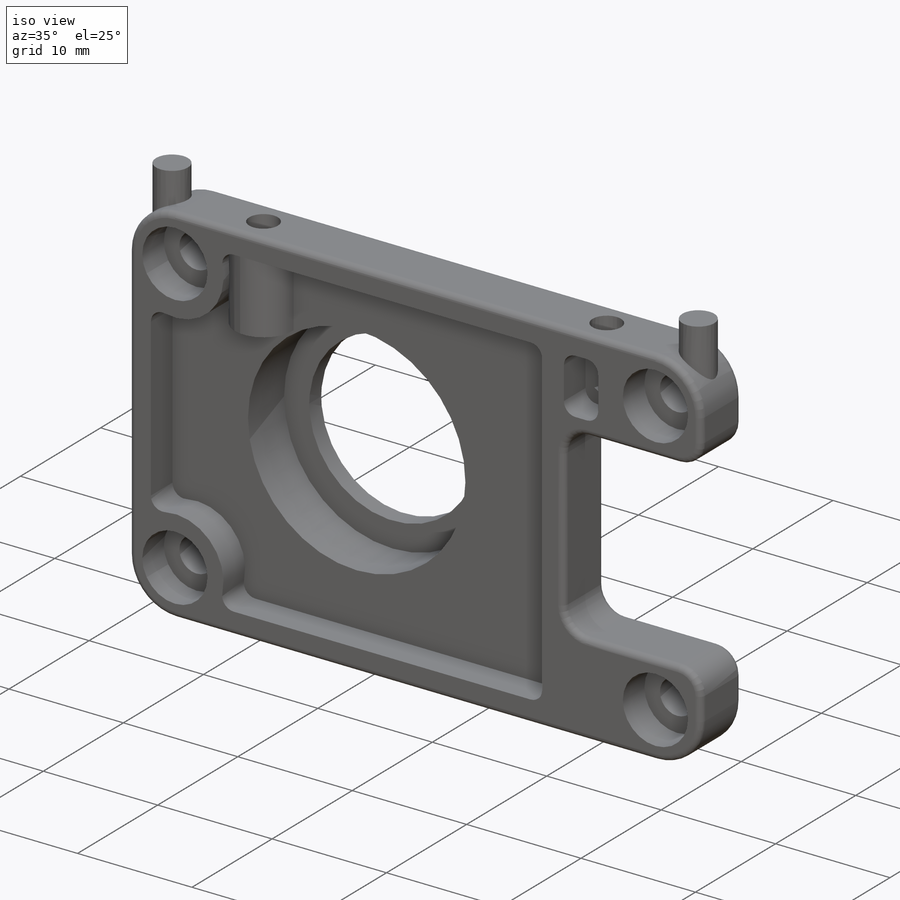
[diagram: iso view]
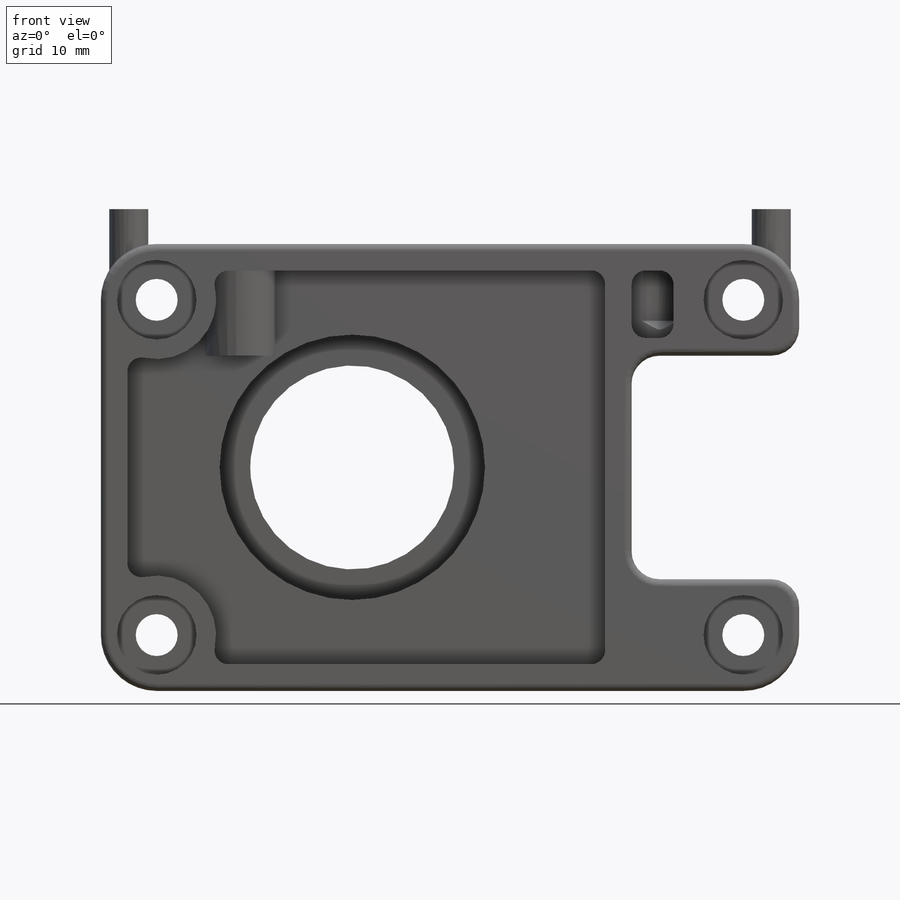
[diagram: front view]
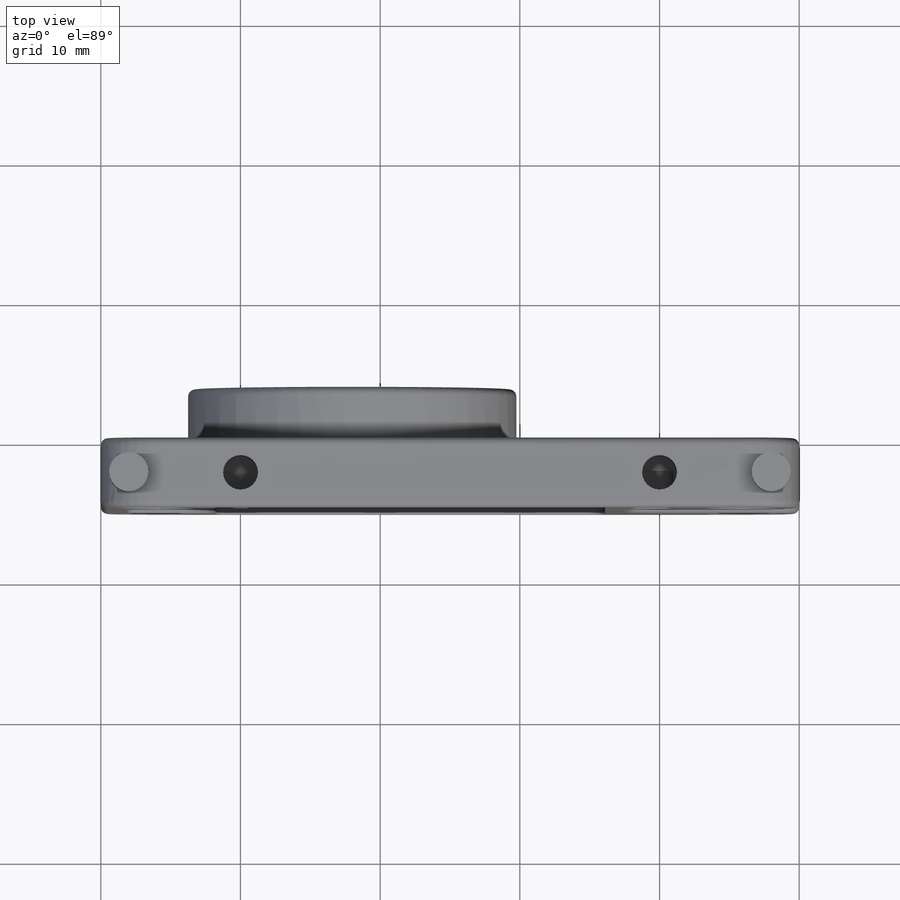
[diagram: top view]
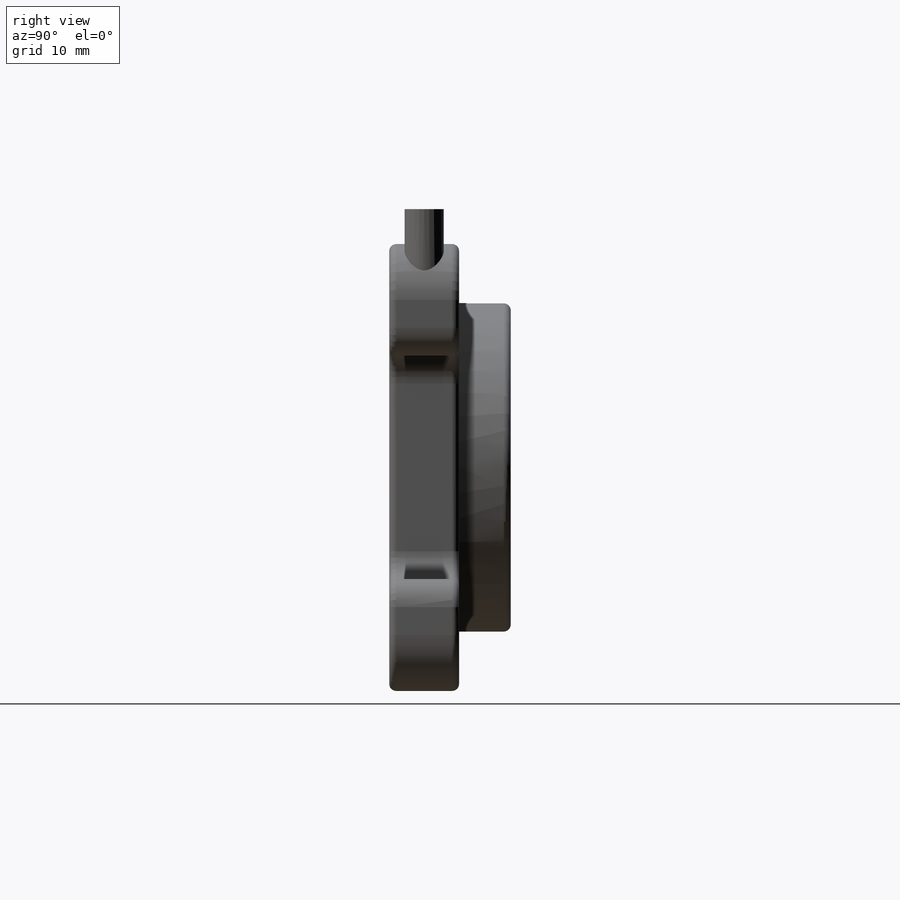
[diagram: right view]
SOLIDWORKS PART (.sldprt)
format: sldprt  version: not decoded by parser v0  size: 1,097,728 bytes
history: native  units: mm
features: sketch x12, plane x7, extrude x7, fillet x6, thread x4, mirror x2, hole x2, material x1, cut_extrude x1 (+8 scaffold rows collapsed)
feature tree (50):
  scaffold x8  (default folders/planes/origin — collapsed)
  material  "材质 <未指定>"
  plane  "前视基准面"
  plane  "上视基准面"
  plane  "右视基准面"
  sketch  "草图1"  dims[c1.D3=3.0mm c1.D10=~14.479886mm c1.D11=19.0mm c1.D1=~50.193386mm c1.D2=~73.536754mm c2.D1=50.0mm c2.D2=32.0mm c2.D6=4.0mm c2.D7=4.0mm c2.D8=4.0mm c2.D9=4.0mm c2.D10=18.0mm c2.D12=8.0mm c2.D13=12.0mm c2.D4=2.0 c2.D5=2.0]
  extrude  "凸台-拉伸1"  Depth=5mm
  sketch  "草图2"  dims[c1.D4=~4.838747mm c1.D6=~2.564948mm c2.D4=3.0mm c2.D1=0.0mm c2.D2=1.35mm c2.D3=1.35mm c3.D4=1.9mm c3.D5=1.4mm]
  cut_extrude  "切除-拉伸1"  Depth=2.7mm
  fillet  "圆角1"  Radius=1mm
  fillet  "圆角2"  Radius=4mm
  fillet  "圆角3"  Radius=2mm
  sketch  "草图3"  dims[D1=23.5mm]
  extrude  "凸台-拉伸2"  Depth=2.2mm
  sketch  "草图4"  dims[D1=14.6mm]
  extrude  "凸台-拉伸3"  Depth=1.5mm
  fillet  "圆角4"  Radius=0.5mm
  fillet  "圆角5"  Radius=0.5mm
  plane  "基准面1"  Offset=2.5mm
  plane  "基准面2"
  sketch  "草图5"  dims[c1.D1=2.8mm c1.D3=2.8mm c2.D1=~13.009643mm c2.D2=23.0mm c2.D3=2.5mm]
  extrude  "凸台-拉伸5"  [1 undecoded]
  mirror  "镜向3"
  sketch  "草图8"  dims[D1=10.0mm]
  extrude  "凸台-拉伸6"  Depth=6mm
  hole  "M3 螺纹孔2"  [1 undecoded]
  sketch  "草图10"  dims[D1=30.0mm]
  sketch  "草图9"  dims[hole-wizard template sketch: 50 standard entries collapsed; hole parameters above]
  thread  "孔螺蚊线2"  Diameter=4mm  [1 undecoded]
  thread  "孔螺蚊线3"  Diameter=4mm  [1 undecoded]
  plane  "基准面3"  Offset=16mm
  sketch  "草图11"  dims[D1=0.0mm]
  extrude  "凸台-拉伸7"  Depth=8mm
  hole  "M3 螺纹孔3"  [1 undecoded]
  sketch  "草图13"  dims[D1=30.0mm]
  sketch  "草图12"  dims[hole-wizard template sketch: 50 standard entries collapsed; hole parameters above]
  thread  "孔螺蚊线4"  Diameter=4mm  [1 undecoded]
  thread  "孔螺蚊线5"  Diameter=4mm  [1 undecoded]
  fillet  "圆角6"  Radius=0.5mm
  plane  "基准面4"  Offset=2.5mm
  sketch  "草图14"  dims[D1=~5.730988mm D2=23.0mm D3=~5.730988mm]
  extrude  "凸台-拉伸8"  [1 undecoded]
  mirror  "镜向7"
decode coverage: 28 of 34 modeling features carry decoded parameters
note: ~ marks probable driven/reference dimensions
note: 8 parameter values undecoded
summary: no parameter record found for 4 features
note: suppression state not decoded; provenance and decode notes live in map.json
